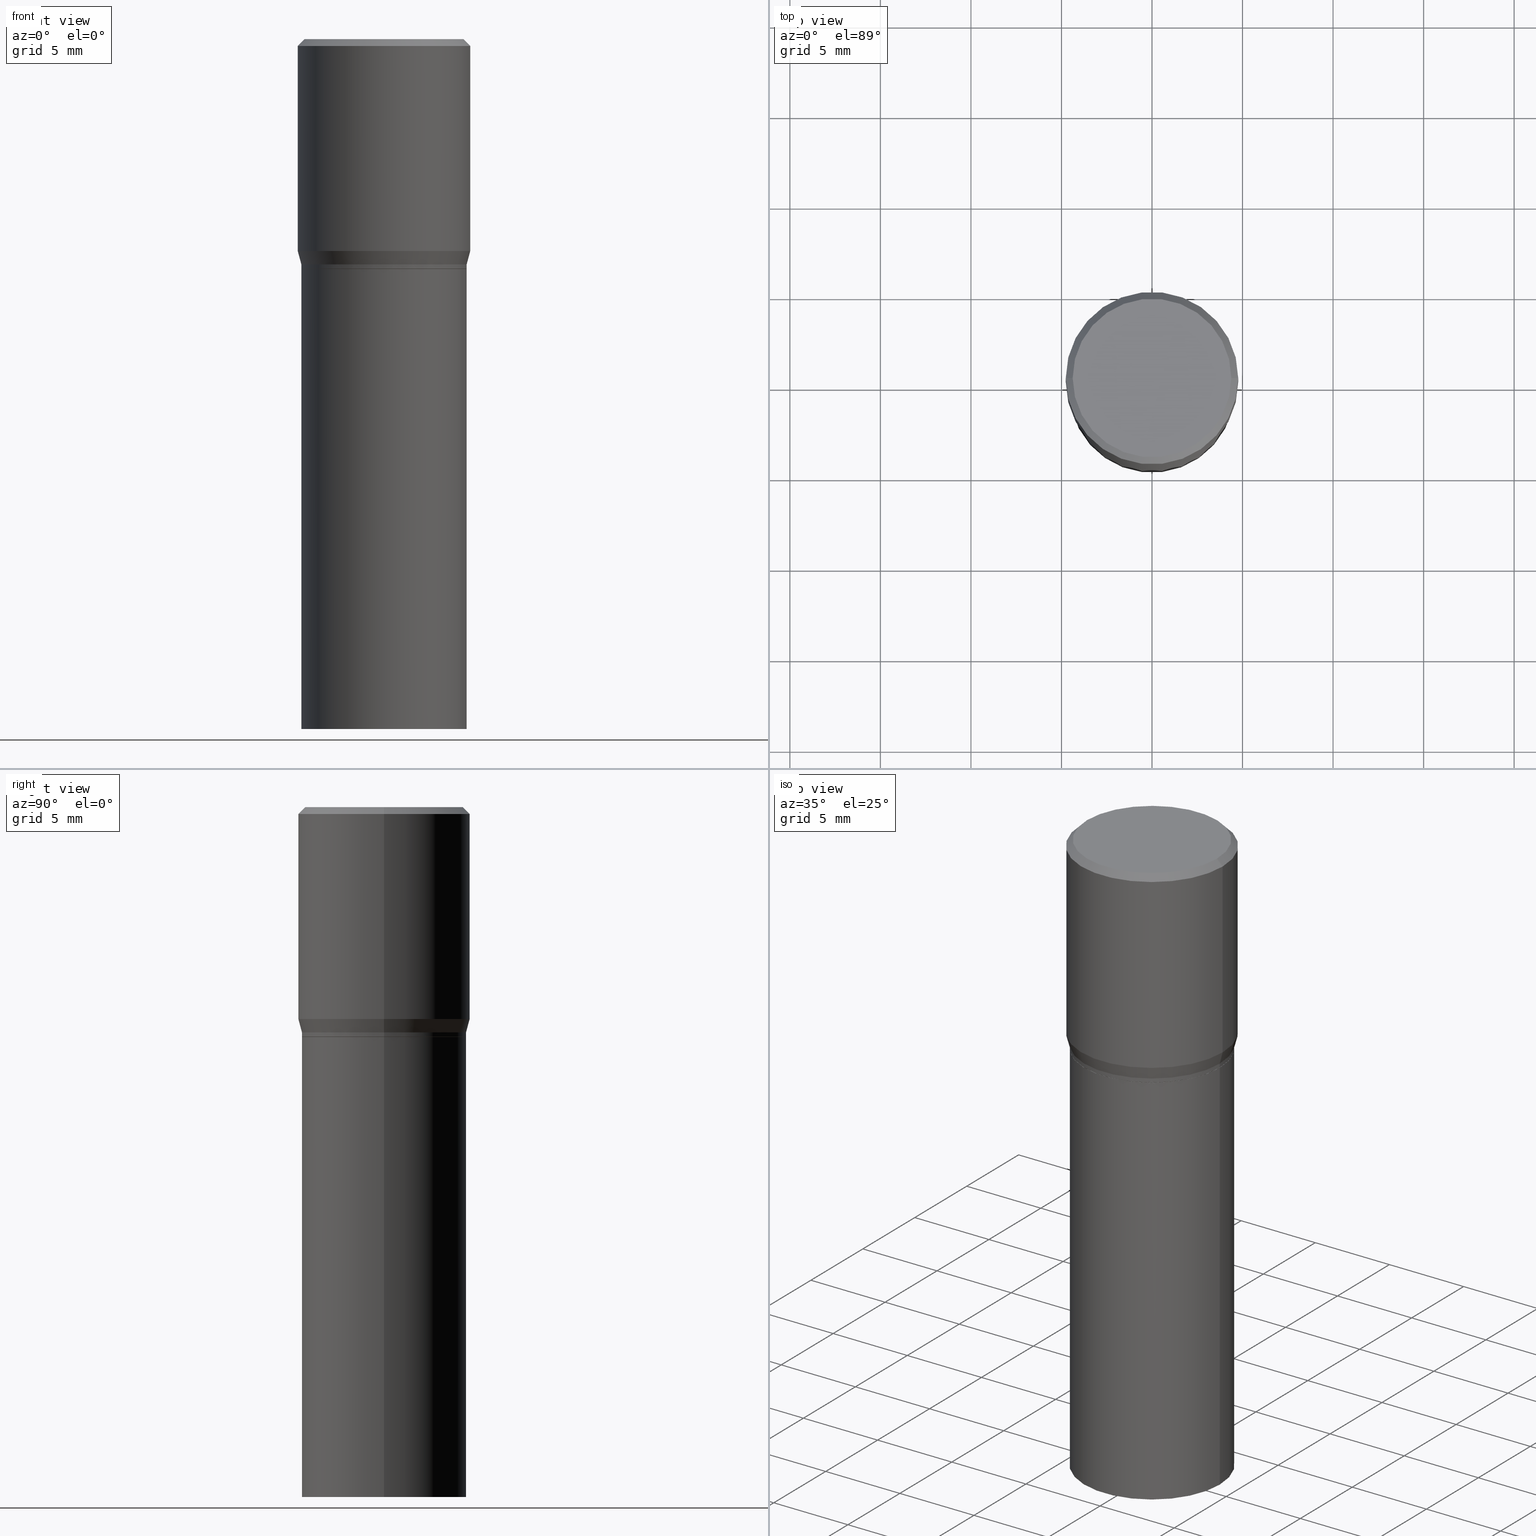
[diagram: canonical four-view strip — front | top / right | iso, engineering-drawing reading convention]
A machine part, canonical four-view strip (front | top / right | iso — engineering-drawing reading convention). The complete STEP part file that produces these views, byte-faithful:
ISO-10303-21;
HEADER;
FILE_DESCRIPTION (( 'STEP AP203' ),
    '1' );
FILE_NAME ('39745.STEP',
    '2024-03-12T19:07:04',
    ( '' ),
    ( '' ),
    'SwSTEP 2.0',
    'SolidWorks 2023',
    '' );
FILE_SCHEMA (( 'CONFIG_CONTROL_DESIGN' ));
ENDSEC;

DATA;
#1 = PRODUCT_DEFINITION_FORMATION_WITH_SPECIFIED_SOURCE ( 'ANY', '', #28, .NOT_KNOWN. ) ;
#2 = ORIENTED_EDGE ( 'NONE', *, *, #163, .T. ) ;
#3 = ORIENTED_EDGE ( 'NONE', *, *, #259, .F. ) ;
#4 = FACE_OUTER_BOUND ( 'NONE', #460, .T. ) ;
#5 = CIRCLE ( 'NONE', #106, 0.1791999999999999982 ) ;
#6 = AXIS2_PLACEMENT_3D ( 'NONE', #323, #236, #451 ) ;
#7 = ORIENTED_EDGE ( 'NONE', *, *, #66, .F. ) ;
#8 = CARTESIAN_POINT ( 'NONE',  ( 3.668203209277705088E-31, -5.237222008264718399E-17, -0.01499999999999999944 ) ) ;
#9 = ORIENTED_EDGE ( 'NONE', *, *, #115, .T. ) ;
#10 = PERSON_AND_ORGANIZATION ( #367, #243 ) ;
#11 = FACE_OUTER_BOUND ( 'NONE', #195, .T. ) ;
#12 = EDGE_CURVE ( 'NONE', #404, #342, #166, .T. ) ;
#13 = VERTEX_POINT ( 'NONE', #335 ) ;
#14 = DATE_AND_TIME ( #332, #226 ) ;
#15 = CARTESIAN_POINT ( 'NONE',  ( 1.222734403092568719E-29, -1.745740669421573186E-15, -0.5000000000000001110 ) ) ;
#16 = EDGE_CURVE ( 'NONE', #342, #87, #337, .T. ) ;
#17 = DIRECTION ( 'NONE',  ( 0.7071067811865715536, -2.468850131082509496E-15, 0.7071067811865232589 ) ) ;
#18 = AXIS2_PLACEMENT_3D ( 'NONE', #327, #437, #293 ) ;
#19 = PERSON_AND_ORGANIZATION_ROLE ( 'classification_officer' ) ;
#20 = CC_DESIGN_PERSON_AND_ORGANIZATION_ASSIGNMENT ( #199, #442, ( #1 ) ) ;
#21 = ORIENTED_EDGE ( 'NONE', *, *, #115, .F. ) ;
#22 = LINE ( 'NONE', #389, #312 ) ;
#23 = CARTESIAN_POINT ( 'NONE',  ( 0.1725000000000000144, -1.261075749640199308E-15, -2.636744989014362231E-17 ) ) ;
#24 = DIRECTION ( 'NONE',  ( 1.000000000000000000, -6.982962677686265922E-15, 0.000000000000000000 ) ) ;
#25 = CIRCLE ( 'NONE', #36, 0.1796999999999999986 ) ;
#26 = CIRCLE ( 'NONE', #125, 0.1875000000000000278 ) ;
#27 = DIRECTION ( 'NONE',  ( 0.7071067811865483499, -7.319954787623257623E-15, -0.7071067811865466846 ) ) ;
#28 = PRODUCT ( '39745', '39745', '', ( #186 ) ) ;
#29 = DIRECTION ( 'NONE',  ( -2.445468806185136597E-29, 3.491481338843145583E-15, 1.000000000000000000 ) ) ;
#30 = CARTESIAN_POINT ( 'NONE',  ( -0.1796999999999999986, -2.214636042682246150E-15, -0.5000000000000001110 ) ) ;
#31 = DIRECTION ( 'NONE',  ( 1.000000000000000000, -6.982962677686265922E-15, 4.876176775795935232E-29 ) ) ;
#32 = AXIS2_PLACEMENT_3D ( 'NONE', #256, #393, #184 ) ;
#33 = ORIENTED_EDGE ( 'NONE', *, *, #163, .F. ) ;
#34 = DIRECTION ( 'NONE',  ( 1.000000000000000000, -6.982962677686265922E-15, 0.000000000000000000 ) ) ;
#35 = DIRECTION ( 'NONE',  ( -2.445468806185136877E-29, 3.491481338843145188E-15, 1.000000000000000000 ) ) ;
#36 = AXIS2_PLACEMENT_3D ( 'NONE', #419, #288, #463 ) ;
#37 = CONICAL_SURFACE ( 'NONE', #284, 0.1875000000000000278, 0.7853981633974495002 ) ;
#38 = MANIFOLD_SOLID_BREP ( 'Body-Move/Copy2[2]', #193 ) ;
#39 = VERTEX_POINT ( 'NONE', #309 ) ;
#40 = EDGE_CURVE ( 'NONE', #267, #359, #458, .T. ) ;
#41 = ORIENTED_EDGE ( 'NONE', *, *, #315, .T. ) ;
#42 = APPROVAL_STATUS ( 'not_yet_approved' ) ;
#43 = DIRECTION ( 'NONE',  ( -2.438088387897960049E-29, 3.491481338843145188E-15, 1.000000000000000000 ) ) ;
#44 = EDGE_LOOP ( 'NONE', ( #79, #52 ) ) ;
#45 = APPROVAL_DATE_TIME ( #330, #333 ) ;
#46 = FACE_OUTER_BOUND ( 'NONE', #49, .T. ) ;
#47 = AXIS2_PLACEMENT_3D ( 'NONE', #311, #281, #248 ) ;
#48 = CONICAL_SURFACE ( 'NONE', #432, 0.1875000000000000278, 0.7853981633974495002 ) ;
#49 = EDGE_LOOP ( 'NONE', ( #104, #102, #183, #192 ) ) ;
#50 = DATE_TIME_ROLE ( 'creation_date' ) ;
#51 = EDGE_CURVE ( 'NONE', #346, #87, #279, .T. ) ;
#52 = ORIENTED_EDGE ( 'NONE', *, *, #395, .F. ) ;
#53 = COORDINATED_UNIVERSAL_TIME_OFFSET ( 5, 0, .BEHIND. ) ;
#54 = DIRECTION ( 'NONE',  ( -2.445468806185136597E-29, 3.491481338843145583E-15, 1.000000000000000000 ) ) ;
#55 = EDGE_CURVE ( 'NONE', #342, #190, #316, .T. ) ;
#56 = CARTESIAN_POINT ( 'NONE',  ( 1.221511668689476057E-29, -1.743994928752151682E-15, -0.4995000000000001661 ) ) ;
#57 = DATE_AND_TIME ( #123, #398 ) ;
#58 = CARTESIAN_POINT ( 'NONE',  ( 1.198279715030717173E-29, -1.710825856033141537E-15, -0.4900000000000001021 ) ) ;
#59 = AXIS2_PLACEMENT_3D ( 'NONE', #133, #164, #98 ) ;
#60 = DIRECTION ( 'NONE',  ( -2.445468806185136877E-29, 3.491481338843145188E-15, 1.000000000000000000 ) ) ;
#61 = CYLINDRICAL_SURFACE ( 'NONE', #232, 0.1875000000000000278 ) ;
#62 = CARTESIAN_POINT ( 'NONE',  ( 3.576687321579069994E-29, -5.368277968210015545E-15, -1.500000000000000222 ) ) ;
#63 = DIRECTION ( 'NONE',  ( -2.445468806185136597E-29, 3.491481338843145583E-15, 1.000000000000000000 ) ) ;
#64 = ORIENTED_EDGE ( 'NONE', *, *, #51, .T. ) ;
#65 = DIRECTION ( 'NONE',  ( 1.000000000000000000, -6.982962677686264344E-15, 0.000000000000000000 ) ) ;
#66 = EDGE_CURVE ( 'NONE', #82, #13, #320, .T. ) ;
#67 = AXIS2_PLACEMENT_3D ( 'NONE', #354, #68, #382 ) ;
#68 = DIRECTION ( 'NONE',  ( -2.445468806185136597E-29, 3.491481338843145583E-15, 1.000000000000000000 ) ) ;
#69 = FACE_OUTER_BOUND ( 'NONE', #331, .T. ) ;
#70 = DIRECTION ( 'NONE',  ( -2.445468806185136597E-29, 3.491481338843145583E-15, 1.000000000000000000 ) ) ;
#71 = DIRECTION ( 'NONE',  ( -2.445468806185136597E-29, 3.491481338843145583E-15, 1.000000000000000000 ) ) ;
#72 = CIRCLE ( 'NONE', #18, 0.1796999999999999986 ) ;
#73 = DIRECTION ( 'NONE',  ( 1.000000000000000000, 0.000000000000000000, 0.000000000000000000 ) ) ;
#74 = CIRCLE ( 'NONE', #369, 0.1791999999999999982 ) ;
#75 = AXIS2_PLACEMENT_3D ( 'NONE', #443, #93, #454 ) ;
#76 = CC_DESIGN_SECURITY_CLASSIFICATION ( #297, ( #1 ) ) ;
#77 = ORIENTED_EDGE ( 'NONE', *, *, #55, .T. ) ;
#78 = APPROVAL_STATUS ( 'not_yet_approved' ) ;
#79 = ORIENTED_EDGE ( 'NONE', *, *, #181, .F. ) ;
#80 = DIRECTION ( 'NONE',  ( 1.000000000000000000, -6.982962677686265922E-15, 4.876176775795935793E-29 ) ) ;
#81 = CC_DESIGN_PERSON_AND_ORGANIZATION_ASSIGNMENT ( #375, #19, ( #297 ) ) ;
#82 = VERTEX_POINT ( 'NONE', #171 ) ;
#83 = APPROVAL_ROLE ( '' ) ;
#84 = DIRECTION ( 'NONE',  ( -2.445468806185136877E-29, 3.491481338843145188E-15, 1.000000000000000000 ) ) ;
#85 = VECTOR ( 'NONE', #35, 39.37007874015748143 ) ;
#86 = CC_DESIGN_APPROVAL ( #134, ( #297 ) ) ;
#87 = VERTEX_POINT ( 'NONE', #244 ) ;
#88 = ADVANCED_FACE ( 'NONE', ( #247 ), #308, .T. ) ;
#89 = PERSON_AND_ORGANIZATION_ROLE ( 'creator' ) ;
#90 = CARTESIAN_POINT ( 'NONE',  ( -0.1796999999999999986, -4.339805598722415617E-16, -0.4900000000000001021 ) ) ;
#91 = DIRECTION ( 'NONE',  ( -2.445468806185136597E-29, 3.491481338843145583E-15, 1.000000000000000000 ) ) ;
#92 = APPROVAL_STATUS ( 'not_yet_approved' ) ;
#93 = DIRECTION ( 'NONE',  ( -2.445468806185136597E-29, 3.491481338843145583E-15, 1.000000000000000000 ) ) ;
#94 = DIRECTION ( 'NONE',  ( -2.445468806185136597E-29, 3.491481338843145583E-15, 1.000000000000000000 ) ) ;
#95 = ADVANCED_FACE ( 'NONE', ( #422 ), #137, .F. ) ;
#96 = DIRECTION ( 'NONE',  ( 1.000000000000000000, -6.982962677686266711E-15, 4.876912640186324808E-29 ) ) ;
#97 = EDGE_CURVE ( 'NONE', #346, #404, #5, .T. ) ;
#98 = DIRECTION ( 'NONE',  ( 1.000000000000000000, -6.982962677686265922E-15, 0.000000000000000000 ) ) ;
#99 = AXIS2_PLACEMENT_3D ( 'NONE', #179, #462, #167 ) ;
#100 = APPROVAL_PERSON_ORGANIZATION ( #10, #134, #83 ) ;
#101 = CARTESIAN_POINT ( 'NONE',  ( 0.000000000000000000, 0.000000000000000000, 0.000000000000000000 ) ) ;
#102 = ORIENTED_EDGE ( 'NONE', *, *, #239, .F. ) ;
#103 = CARTESIAN_POINT ( 'NONE',  ( 0.000000000000000000, 0.000000000000000000, 0.000000000000000000 ) ) ;
#104 = ORIENTED_EDGE ( 'NONE', *, *, #410, .F. ) ;
#105 = DIRECTION ( 'NONE',  ( 1.000000000000000000, -6.982962677686267499E-15, 0.000000000000000000 ) ) ;
#106 = AXIS2_PLACEMENT_3D ( 'NONE', #461, #273, #130 ) ;
#107 = VECTOR ( 'NONE', #266, 39.37007874015747433 ) ;
#108 = CARTESIAN_POINT ( 'NONE',  ( 0.000000000000000000, 0.000000000000000000, 0.000000000000000000 ) ) ;
#109 = CC_DESIGN_DATE_AND_TIME_ASSIGNMENT ( #402, #50, ( #160 ) ) ;
#110 = EDGE_LOOP ( 'NONE', ( #2, #388 ) ) ;
#111 = PRODUCT_DEFINITION_SHAPE ( 'NONE', 'NONE',  #160 ) ;
#112 = ADVANCED_FACE ( 'NONE', ( #282 ), #396, .T. ) ;
#113 = AXIS2_PLACEMENT_3D ( 'NONE', #103, #310, #392 ) ;
#114 = CARTESIAN_POINT ( 'NONE',  ( 0.1796999999999999986, -1.254838393180221928E-15, 8.762489666105295644E-30 ) ) ;
#115 = EDGE_CURVE ( 'NONE', #404, #346, #74, .T. ) ;
#116 = EDGE_LOOP ( 'NONE', ( #41, #438, #260, #435 ) ) ;
#117 = APPROVAL_PERSON_ORGANIZATION ( #440, #241, #119 ) ;
#118 = VERTEX_POINT ( 'NONE', #23 ) ;
#119 = APPROVAL_ROLE ( '' ) ;
#120 = EDGE_LOOP ( 'NONE', ( #158, #189, #368, #322 ) ) ;
#121 = CARTESIAN_POINT ( 'NONE',  ( -0.1796999999999999986, -2.214636042682246150E-15, -1.500000000000000222 ) ) ;
#122 = ORIENTED_EDGE ( 'NONE', *, *, #253, .F. ) ;
#123 = CALENDAR_DATE ( 2024, 12, 3 ) ;
#124 = DIRECTION ( 'NONE',  ( 2.445468806185136597E-29, -3.491481338843145583E-15, -1.000000000000000000 ) ) ;
#125 = AXIS2_PLACEMENT_3D ( 'NONE', #466, #143, #34 ) ;
#126 = ORIENTED_EDGE ( 'NONE', *, *, #295, .F. ) ;
#127 = PERSON_AND_ORGANIZATION ( #367, #243 ) ;
#128 = FACE_OUTER_BOUND ( 'NONE', #44, .T. ) ;
#129 = CARTESIAN_POINT ( 'NONE',  ( 3.668203209277705088E-31, -5.237222008264718399E-17, -0.01499999999999999944 ) ) ;
#130 = DIRECTION ( 'NONE',  ( 1.000000000000000000, -6.982962677686266711E-15, 0.000000000000000000 ) ) ;
#131 = DIRECTION ( 'NONE',  ( -2.445468806185136597E-29, 3.491481338843145583E-15, 1.000000000000000000 ) ) ;
#132 = VECTOR ( 'NONE', #415, 39.37007874015748854 ) ;
#133 = CARTESIAN_POINT ( 'NONE',  ( 3.668203209277705088E-31, -5.237222008264718399E-17, -0.01499999999999999944 ) ) ;
#134 = APPROVAL ( #42, 'UNSPECIFIED' ) ;
#135 = CARTESIAN_POINT ( 'NONE',  ( -0.1791999999999999982, -4.724480869394737642E-16, -0.5000000000000001110 ) ) ;
#136 = CARTESIAN_POINT ( 'NONE',  ( 0.000000000000000000, 0.000000000000000000, 0.000000000000000000 ) ) ;
#137 = PLANE ( 'NONE',  #47 ) ;
#138 = LINE ( 'NONE', #464, #162 ) ;
#139 = CC_DESIGN_PERSON_AND_ORGANIZATION_ASSIGNMENT ( #336, #89, ( #160 ) ) ;
#140 = CIRCLE ( 'NONE', #67, 0.1796999999999999986 ) ;
#141 = CYLINDRICAL_SURFACE ( 'NONE', #113, 0.1796999999999999986 ) ;
#142 = ADVANCED_FACE ( 'NONE', ( #128 ), #413, .F. ) ;
#143 = DIRECTION ( 'NONE',  ( -2.445468806185136597E-29, 3.491481338843145583E-15, 1.000000000000000000 ) ) ;
#144 = AXIS2_PLACEMENT_3D ( 'NONE', #423, #391, #254 ) ;
#145 = CIRCLE ( 'NONE', #425, 0.1725000000000000144 ) ;
#146 = DIRECTION ( 'NONE',  ( 2.438088387897960049E-29, -3.491481338843145188E-15, -1.000000000000000000 ) ) ;
#147 = LINE ( 'NONE', #191, #172 ) ;
#148 = ORIENTED_EDGE ( 'NONE', *, *, #315, .F. ) ;
#149 = ORIENTED_EDGE ( 'NONE', *, *, #253, .T. ) ;
#150 = CALENDAR_DATE ( 2024, 12, 3 ) ;
#151 = LINE ( 'NONE', #298, #361 ) ;
#152 = LOCAL_TIME ( 15, 7, 4.000000000000000000, #407 ) ;
#153 = ORIENTED_EDGE ( 'NONE', *, *, #12, .T. ) ;
#154 = APPROVAL_ROLE ( '' ) ;
#155 = ORIENTED_EDGE ( 'NONE', *, *, #439, .T. ) ;
#156 = COORDINATED_UNIVERSAL_TIME_OFFSET ( 5, 0, .BEHIND. ) ;
#157 = CARTESIAN_POINT ( 'NONE',  ( -0.1725000000000000144, 1.230747171942204192E-15, -2.636744989016075847E-17 ) ) ;
#158 = ORIENTED_EDGE ( 'NONE', *, *, #238, .F. ) ;
#159 = SHAPE_DEFINITION_REPRESENTATION ( #111, #390 ) ;
#160 = PRODUCT_DEFINITION ( 'UNKNOWN', '', #1, #165 ) ;
#161 = DIRECTION ( 'NONE',  ( 1.000000000000000000, -6.982962677686265922E-15, 0.000000000000000000 ) ) ;
#162 = VECTOR ( 'NONE', #27, 39.37007874015748143 ) ;
#163 = EDGE_CURVE ( 'NONE', #39, #409, #25, .T. ) ;
#164 = DIRECTION ( 'NONE',  ( -2.445468806185136597E-29, 3.491481338843145583E-15, 1.000000000000000000 ) ) ;
#165 = DESIGN_CONTEXT ( 'detailed design', #289, 'design' ) ;
#166 = LINE ( 'NONE', #135, #132 ) ;
#167 = DIRECTION ( 'NONE',  ( 1.000000000000000000, -6.982962677686265922E-15, 4.876176775795935232E-29 ) ) ;
#168 = CARTESIAN_POINT ( 'NONE',  ( 1.198279715030717173E-29, -1.710825856033141537E-15, -0.4900000000000001021 ) ) ;
#169 =( NAMED_UNIT ( * ) SI_UNIT ( $, .STERADIAN. ) SOLID_ANGLE_UNIT ( ) );
#170 = AXIS2_PLACEMENT_3D ( 'NONE', #168, #91, #237 ) ;
#171 = CARTESIAN_POINT ( 'NONE',  ( 0.1875000000000000278, -1.361677722148822285E-15, -0.01499999999999999944 ) ) ;
#172 = VECTOR ( 'NONE', #376, 39.37007874015748143 ) ;
#173 = ADVANCED_FACE ( 'NONE', ( #430 ), #180, .F. ) ;
#174 = CYLINDRICAL_SURFACE ( 'NONE', #262, 0.1796999999999999986 ) ;
#175 = EDGE_CURVE ( 'NONE', #409, #39, #349, .T. ) ;
#176 = ORIENTED_EDGE ( 'NONE', *, *, #55, .F. ) ;
#177 = FACE_OUTER_BOUND ( 'NONE', #275, .T. ) ;
#178 = ORIENTED_EDGE ( 'NONE', *, *, #97, .T. ) ;
#179 = CARTESIAN_POINT ( 'NONE',  ( 0.000000000000000000, 0.000000000000000000, 0.000000000000000000 ) ) ;
#180 = PLANE ( 'NONE',  #291 ) ;
#181 = EDGE_CURVE ( 'NONE', #302, #328, #305, .T. ) ;
#182 = AXIS2_PLACEMENT_3D ( 'NONE', #58, #339, #411 ) ;
#183 = ORIENTED_EDGE ( 'NONE', *, *, #379, .T. ) ;
#184 = DIRECTION ( 'NONE',  ( 1.000000000000000000, -6.982962677686266711E-15, 4.876912640186324808E-29 ) ) ;
#185 = PERSON_AND_ORGANIZATION ( #367, #243 ) ;
#186 = MECHANICAL_CONTEXT ( 'NONE', #453, 'mechanical' ) ;
#187 = CLOSED_SHELL ( 'NONE', ( #421, #142, #88, #95 ) ) ;
#188 = CARTESIAN_POINT ( 'NONE',  ( 0.1875000000000000278, -2.918494349247435201E-15, -0.4608900037009628914 ) ) ;
#189 = ORIENTED_EDGE ( 'NONE', *, *, #259, .T. ) ;
#190 = VERTEX_POINT ( 'NONE', #250 ) ;
#191 = CARTESIAN_POINT ( 'NONE',  ( 0.1796999999999999986, -1.254838393180221928E-15, 8.762489666105295644E-30 ) ) ;
#192 = ORIENTED_EDGE ( 'NONE', *, *, #329, .T. ) ;
#193 = CLOSED_SHELL ( 'NONE', ( #446, #429, #216, #394, #112, #290, #340, #360, #173, #341, #276, #387 ) ) ;
#194 = AXIS2_PLACEMENT_3D ( 'NONE', #287, #71, #105 ) ;
#195 = EDGE_LOOP ( 'NONE', ( #325, #149, #363, #3 ) ) ;
#196 = DATE_AND_TIME ( #326, #383 ) ;
#197 = DIRECTION ( 'NONE',  ( -2.445468806185136877E-29, 3.491481338843145188E-15, 1.000000000000000000 ) ) ;
#198 = EDGE_LOOP ( 'NONE', ( #270, #264, #33, #401 ) ) ;
#199 = PERSON_AND_ORGANIZATION ( #367, #243 ) ;
#200 = FACE_OUTER_BOUND ( 'NONE', #120, .T. ) ;
#201 = CARTESIAN_POINT ( 'NONE',  ( 0.000000000000000000, 0.000000000000000000, 0.000000000000000000 ) ) ;
#202 = MANIFOLD_SOLID_BREP ( 'Body-Move/Copy2[1]', #187 ) ;
#203 = CARTESIAN_POINT ( 'NONE',  ( 0.1796999999999999986, -2.965664249213363464E-15, -0.4900000000000001021 ) ) ;
#204 = CONICAL_SURFACE ( 'NONE', #465, 0.1791999999999999982, 0.7853981633974824739 ) ;
#205 = DIRECTION ( 'NONE',  ( -2.438088387897960049E-29, 3.491481338843145188E-15, 1.000000000000000000 ) ) ;
#206 = CC_DESIGN_DATE_AND_TIME_ASSIGNMENT ( #196, #400, ( #297 ) ) ;
#207 = DIRECTION ( 'NONE',  ( 1.000000000000000000, -6.982962677686265922E-15, 4.876176775795935793E-29 ) ) ;
#208 = LENGTH_MEASURE_WITH_UNIT ( LENGTH_MEASURE( 0.02539999999999999897 ), #424 );
#209 = ORIENTED_EDGE ( 'NONE', *, *, #16, .F. ) ;
#210 = FACE_OUTER_BOUND ( 'NONE', #198, .T. ) ;
#211 = CARTESIAN_POINT ( 'NONE',  ( 1.127092127133256822E-29, -1.609188847181260193E-15, -0.4608900037009628914 ) ) ;
#212 = CONICAL_SURFACE ( 'NONE', #269, 0.1791999999999999982, 0.7853981633974824739 ) ;
#213 = DIRECTION ( 'NONE',  ( -2.445468806185136597E-29, 3.491481338843145583E-15, 1.000000000000000000 ) ) ;
#214 = CARTESIAN_POINT ( 'NONE',  ( 3.668203209277705088E-31, -5.237222008264718399E-17, -0.01499999999999999944 ) ) ;
#215 = DIRECTION ( 'NONE',  ( 1.000000000000000000, -6.982962677686265922E-15, 4.876176775795935793E-29 ) ) ;
#216 = ADVANCED_FACE ( 'NONE', ( #69 ), #37, .T. ) ;
#217 = DIRECTION ( 'NONE',  ( -1.000000000000000000, 6.982962677686265922E-15, 0.000000000000000000 ) ) ;
#218 = AXIS2_PLACEMENT_3D ( 'NONE', #129, #274, #161 ) ;
#219 = EDGE_LOOP ( 'NONE', ( #265, #155 ) ) ;
#220 = APPLICATION_PROTOCOL_DEFINITION ( 'international standard', 'config_control_design', 1994, #289 ) ;
#221 = ORIENTED_EDGE ( 'NONE', *, *, #175, .F. ) ;
#222 = DIRECTION ( 'NONE',  ( 0.000000000000000000, 0.000000000000000000, 1.000000000000000000 ) ) ;
#223 = CARTESIAN_POINT ( 'NONE',  ( 1.204561061900881047E-15, 0.1725000000000000144, -6.154642558955188135E-16 ) ) ;
#224 = ORIENTED_EDGE ( 'NONE', *, *, #51, .F. ) ;
#225 = AXIS2_PLACEMENT_3D ( 'NONE', #108, #222, #73 ) ;
#226 = LOCAL_TIME ( 15, 7, 4.000000000000000000, #156 ) ;
#227 = ORIENTED_EDGE ( 'NONE', *, *, #40, .T. ) ;
#228 = COORDINATED_UNIVERSAL_TIME_OFFSET ( 5, 0, .BEHIND. ) ;
#229 = ORIENTED_EDGE ( 'NONE', *, *, #12, .F. ) ;
#230 = ORIENTED_EDGE ( 'NONE', *, *, #263, .F. ) ;
#231 = DIRECTION ( 'NONE',  ( 1.000000000000000000, -6.982962677686266711E-15, 0.000000000000000000 ) ) ;
#232 = AXIS2_PLACEMENT_3D ( 'NONE', #101, #70, #215 ) ;
#233 = CC_DESIGN_PERSON_AND_ORGANIZATION_ASSIGNMENT ( #428, #255, ( #28 ) ) ;
#234 = ORIENTED_EDGE ( 'NONE', *, *, #434, .T. ) ;
#235 = PERSON_AND_ORGANIZATION_ROLE ( 'creator' ) ;
#236 = DIRECTION ( 'NONE',  ( -2.445468806185136597E-29, 3.491481338843145583E-15, 1.000000000000000000 ) ) ;
#237 = DIRECTION ( 'NONE',  ( 1.000000000000000000, -6.982962677686265922E-15, 0.000000000000000000 ) ) ;
#238 = EDGE_CURVE ( 'NONE', #359, #13, #358, .T. ) ;
#239 = EDGE_CURVE ( 'NONE', #351, #118, #372, .T. ) ;
#240 = CARTESIAN_POINT ( 'NONE',  ( 0.1791999999999999982, -2.997087581262952106E-15, -0.5000000000000001110 ) ) ;
#241 = APPROVAL ( #92, 'UNSPECIFIED' ) ;
#242 = FACE_OUTER_BOUND ( 'NONE', #362, .T. ) ;
#243 = ORGANIZATION ( 'UNSPECIFIED', 'UNSPECIFIED', '' ) ;
#244 = CARTESIAN_POINT ( 'NONE',  ( 0.1796999999999999986, -2.998833321932373610E-15, -0.4995000000000001661 ) ) ;
#245 = CARTESIAN_POINT ( 'NONE',  ( 1.222734403092568719E-29, -1.745740669421573186E-15, -0.5000000000000001110 ) ) ;
#246 = PRODUCT_RELATED_PRODUCT_CATEGORY ( 'detail', '', ( #28 ) ) ;
#247 = FACE_OUTER_BOUND ( 'NONE', #406, .T. ) ;
#248 = DIRECTION ( 'NONE',  ( -1.000000000000000000, 6.982962677686265922E-15, -4.876176775795935793E-29 ) ) ;
#249 = VECTOR ( 'NONE', #60, 39.37007874015748143 ) ;
#250 = CARTESIAN_POINT ( 'NONE',  ( -0.1796999999999999986, -3.554508887516567806E-16, -0.4900000000000001021 ) ) ;
#251 = AXIS2_PLACEMENT_3D ( 'NONE', #15, #43, #80 ) ;
#252 = DIRECTION ( 'NONE',  ( -2.445468806185136597E-29, 3.491481338843145583E-15, 1.000000000000000000 ) ) ;
#253 = EDGE_CURVE ( 'NONE', #190, #304, #72, .T. ) ;
#254 = DIRECTION ( 'NONE',  ( 1.000000000000000000, -6.982962677686265922E-15, 0.000000000000000000 ) ) ;
#255 = PERSON_AND_ORGANIZATION_ROLE ( 'design_owner' ) ;
#256 = CARTESIAN_POINT ( 'NONE',  ( 6.448077620501702025E-46, -9.206145924434830208E-32, -2.636744989015224123E-17 ) ) ;
#257 = AXIS2_PLACEMENT_3D ( 'NONE', #201, #386, #313 ) ;
#258 = CIRCLE ( 'NONE', #218, 0.1875000000000000278 ) ;
#259 = EDGE_CURVE ( 'NONE', #359, #267, #26, .T. ) ;
#260 = ORIENTED_EDGE ( 'NONE', *, *, #40, .F. ) ;
#261 = AXIS2_PLACEMENT_3D ( 'NONE', #56, #94, #65 ) ;
#262 = AXIS2_PLACEMENT_3D ( 'NONE', #136, #63, #31 ) ;
#263 = EDGE_CURVE ( 'NONE', #87, #304, #433, .T. ) ;
#264 = ORIENTED_EDGE ( 'NONE', *, *, #348, .T. ) ;
#265 = ORIENTED_EDGE ( 'NONE', *, *, #239, .T. ) ;
#266 = DIRECTION ( 'NONE',  ( 0.2588190451025213501, 1.565188264969621968E-15, 0.9659258262890682012 ) ) ;
#267 = VERTEX_POINT ( 'NONE', #188 ) ;
#268 = DIRECTION ( 'NONE',  ( -1.000000000000000000, 6.982962677686265922E-15, 0.000000000000000000 ) ) ;
#269 = AXIS2_PLACEMENT_3D ( 'NONE', #405, #54, #231 ) ;
#270 = ORIENTED_EDGE ( 'NONE', *, *, #181, .T. ) ;
#271 = EDGE_CURVE ( 'NONE', #302, #39, #147, .T. ) ;
#272 = CARTESIAN_POINT ( 'NONE',  ( 0.1875000000000000278, -1.309305502066175008E-15, 9.142831454617381013E-30 ) ) ;
#273 = DIRECTION ( 'NONE',  ( -2.445468806185136597E-29, 3.491481338843145583E-15, 1.000000000000000000 ) ) ;
#274 = DIRECTION ( 'NONE',  ( -2.445468806185136597E-29, 3.491481338843145583E-15, 1.000000000000000000 ) ) ;
#275 = EDGE_LOOP ( 'NONE', ( #176, #399, #444, #122 ) ) ;
#276 = ADVANCED_FACE ( 'NONE', ( #4 ), #212, .T. ) ;
#277 = LOCAL_TIME ( 15, 7, 4.000000000000000000, #228 ) ;
#278 = CC_DESIGN_APPROVAL ( #241, ( #1 ) ) ;
#279 = LINE ( 'NONE', #240, #448 ) ;
#280 = DIRECTION ( 'NONE',  ( -0.2588190451025213501, 5.211531920934551042E-15, 0.9659258262890682012 ) ) ;
#281 = DIRECTION ( 'NONE',  ( 2.438088387897960049E-29, -3.491481338843145188E-15, -1.000000000000000000 ) ) ;
#282 = FACE_OUTER_BOUND ( 'NONE', #116, .T. ) ;
#283 = CARTESIAN_POINT ( 'NONE',  ( 6.448077620501702025E-46, -9.206145924434830208E-32, -2.636744989015224123E-17 ) ) ;
#284 = AXIS2_PLACEMENT_3D ( 'NONE', #214, #355, #217 ) ;
#285 = DIRECTION ( 'NONE',  ( -1.000000000000000000, 6.982962677686265922E-15, -4.876176775795935793E-29 ) ) ;
#286 = DIRECTION ( 'NONE',  ( 1.000000000000000000, -6.982962677686266711E-15, 0.000000000000000000 ) ) ;
#287 = CARTESIAN_POINT ( 'NONE',  ( 3.668203209277704895E-29, -5.237222008264718177E-15, -1.500000000000000222 ) ) ;
#288 = DIRECTION ( 'NONE',  ( -2.445468806185136597E-29, 3.491481338843145583E-15, 1.000000000000000000 ) ) ;
#289 = APPLICATION_CONTEXT ( 'configuration controlled 3d designs of mechanical parts and assemblies' ) ;
#290 = ADVANCED_FACE ( 'NONE', ( #11 ), #338, .T. ) ;
#291 = AXIS2_PLACEMENT_3D ( 'NONE', #223, #146, #285 ) ;
#292 = CIRCLE ( 'NONE', #350, 0.1796999999999999986 ) ;
#293 = DIRECTION ( 'NONE',  ( 1.000000000000000000, -6.982962677686265922E-15, 0.000000000000000000 ) ) ;
#294 = ORIENTED_EDGE ( 'NONE', *, *, #348, .F. ) ;
#295 = EDGE_CURVE ( 'NONE', #267, #82, #301, .T. ) ;
#296 = ORIENTED_EDGE ( 'NONE', *, *, #66, .T. ) ;
#297 = SECURITY_CLASSIFICATION ( '', '', #436 ) ;
#298 = CARTESIAN_POINT ( 'NONE',  ( -0.1796999999999999986, 1.276845296160900024E-15, -8.839326357188065585E-30 ) ) ;
#299 = ORIENTED_EDGE ( 'NONE', *, *, #97, .F. ) ;
#300 = CALENDAR_DATE ( 2024, 12, 3 ) ;
#301 = LINE ( 'NONE', #272, #459 ) ;
#302 = VERTEX_POINT ( 'NONE', #334 ) ;
#303 = LINE ( 'NONE', #445, #107 ) ;
#304 = VERTEX_POINT ( 'NONE', #203 ) ;
#305 = CIRCLE ( 'NONE', #194, 0.1796999999999999986 ) ;
#306 = CARTESIAN_POINT ( 'NONE',  ( -0.1796999999999999986, -4.671496325912518552E-16, -0.4995000000000001661 ) ) ;
#307 = CIRCLE ( 'NONE', #182, 0.1796999999999999986 ) ;
#308 = CYLINDRICAL_SURFACE ( 'NONE', #257, 0.1796999999999999986 ) ;
#309 = CARTESIAN_POINT ( 'NONE',  ( 0.1796999999999999986, -3.000579062601795113E-15, -0.5000000000000001110 ) ) ;
#310 = DIRECTION ( 'NONE',  ( -2.445468806185136597E-29, 3.491481338843145583E-15, 1.000000000000000000 ) ) ;
#311 = CARTESIAN_POINT ( 'NONE',  ( 1.254838393180234155E-15, 0.1796999999999982500, -0.5000000000000007772 ) ) ;
#312 = VECTOR ( 'NONE', #420, 39.37007874015748143 ) ;
#313 = DIRECTION ( 'NONE',  ( 1.000000000000000000, -6.982962677686265922E-15, 4.876176775795935232E-29 ) ) ;
#314 = CYLINDRICAL_SURFACE ( 'NONE', #99, 0.1796999999999999986 ) ;
#315 = EDGE_CURVE ( 'NONE', #304, #190, #307, .T. ) ;
#316 = LINE ( 'NONE', #457, #249 ) ;
#317 = CARTESIAN_POINT ( 'NONE',  ( -0.1791999999999999982, -4.697988597653629576E-16, -0.5000000000000001110 ) ) ;
#318 = CARTESIAN_POINT ( 'NONE',  ( -0.1875000000000000278, 1.332267629550188046E-15, -9.223003294227947991E-30 ) ) ;
#319 = ORIENTED_EDGE ( 'NONE', *, *, #395, .T. ) ;
#320 = CIRCLE ( 'NONE', #59, 0.1875000000000000278 ) ;
#321 = EDGE_LOOP ( 'NONE', ( #299, #21 ) ) ;
#322 = ORIENTED_EDGE ( 'NONE', *, *, #329, .F. ) ;
#323 = CARTESIAN_POINT ( 'NONE',  ( 0.000000000000000000, 0.000000000000000000, 0.000000000000000000 ) ) ;
#324 = CC_DESIGN_PERSON_AND_ORGANIZATION_ASSIGNMENT ( #127, #235, ( #1 ) ) ;
#325 = ORIENTED_EDGE ( 'NONE', *, *, #370, .F. ) ;
#326 = CALENDAR_DATE ( 2024, 12, 3 ) ;
#327 = CARTESIAN_POINT ( 'NONE',  ( 1.198279715030717173E-29, -1.710825856033141537E-15, -0.4900000000000001021 ) ) ;
#328 = VERTEX_POINT ( 'NONE', #121 ) ;
#329 = EDGE_CURVE ( 'NONE', #13, #82, #258, .T. ) ;
#330 = DATE_AND_TIME ( #150, #152 ) ;
#331 = EDGE_LOOP ( 'NONE', ( #374, #447, #296, #365 ) ) ;
#332 = CALENDAR_DATE ( 2024, 12, 3 ) ;
#333 = APPROVAL ( #78, 'UNSPECIFIED' ) ;
#334 = CARTESIAN_POINT ( 'NONE',  ( 0.1796999999999999986, -6.492060401444940696E-15, -1.500000000000000222 ) ) ;
#335 = CARTESIAN_POINT ( 'NONE',  ( -0.1875000000000000278, 5.014870959182341138E-16, -0.01499999999999999944 ) ) ;
#336 = PERSON_AND_ORGANIZATION ( #367, #243 ) ;
#337 = CIRCLE ( 'NONE', #261, 0.1796999999999999986 ) ;
#338 = CONICAL_SURFACE ( 'NONE', #75, 0.1796999999999999986, 0.2617993877991500740 ) ;
#339 = DIRECTION ( 'NONE',  ( -2.445468806185136597E-29, 3.491481338843145583E-15, 1.000000000000000000 ) ) ;
#340 = ADVANCED_FACE ( 'NONE', ( #200 ), #403, .T. ) ;
#341 = ADVANCED_FACE ( 'NONE', ( #378 ), #414, .F. ) ;
#342 = VERTEX_POINT ( 'NONE', #306 ) ;
#343 = FACE_OUTER_BOUND ( 'NONE', #427, .T. ) ;
#344 = EDGE_LOOP ( 'NONE', ( #178, #153, #455, #224 ) ) ;
#345 =( NAMED_UNIT ( * ) PLANE_ANGLE_UNIT ( ) SI_UNIT ( $, .RADIAN. ) );
#346 = VERTEX_POINT ( 'NONE', #373 ) ;
#347 =( CONVERSION_BASED_UNIT ( 'INCH', #208 ) LENGTH_UNIT ( ) NAMED_UNIT ( #450 ) );
#348 = EDGE_CURVE ( 'NONE', #328, #409, #151, .T. ) ;
#349 = CIRCLE ( 'NONE', #144, 0.1796999999999999986 ) ;
#350 = AXIS2_PLACEMENT_3D ( 'NONE', #385, #252, #418 ) ;
#351 = VERTEX_POINT ( 'NONE', #157 ) ;
#352 = APPLICATION_PROTOCOL_DEFINITION ( 'international standard', 'config_control_design', 1994, #453 ) ;
#353 = DIRECTION ( 'NONE',  ( -2.445468806185136877E-29, 3.491481338843145188E-15, 1.000000000000000000 ) ) ;
#354 = CARTESIAN_POINT ( 'NONE',  ( 3.668203209277704895E-29, -5.237222008264718177E-15, -1.500000000000000222 ) ) ;
#355 = DIRECTION ( 'NONE',  ( 2.445468806185136597E-29, -3.491481338843145583E-15, -1.000000000000000000 ) ) ;
#356 = EDGE_CURVE ( 'NONE', #304, #267, #303, .T. ) ;
#357 = APPROVAL_PERSON_ORGANIZATION ( #185, #333, #154 ) ;
#358 = LINE ( 'NONE', #318, #397 ) ;
#359 = VERTEX_POINT ( 'NONE', #366 ) ;
#360 = ADVANCED_FACE ( 'NONE', ( #46 ), #48, .T. ) ;
#361 = VECTOR ( 'NONE', #197, 39.37007874015748143 ) ;
#362 = EDGE_LOOP ( 'NONE', ( #234, #77, #148, #230 ) ) ;
#363 = ORIENTED_EDGE ( 'NONE', *, *, #356, .T. ) ;
#364 = APPROVAL_DATE_TIME ( #14, #134 ) ;
#365 = ORIENTED_EDGE ( 'NONE', *, *, #379, .F. ) ;
#366 = CARTESIAN_POINT ( 'NONE',  ( -0.1875000000000000278, -2.769212176310719994E-16, -0.4608900037009628914 ) ) ;
#367 = PERSON ( 'UNSPECIFIED', 'UNSPECIFIED', 'UNSPECIFIED', ('UNSPECIFIED'), ('UNSPECIFIED'), ('UNSPECIFIED') ) ;
#368 = ORIENTED_EDGE ( 'NONE', *, *, #295, .T. ) ;
#369 = AXIS2_PLACEMENT_3D ( 'NONE', #384, #377, #452 ) ;
#370 = EDGE_CURVE ( 'NONE', #190, #359, #408, .T. ) ;
#371 = APPROVAL_DATE_TIME ( #57, #241 ) ;
#372 = CIRCLE ( 'NONE', #32, 0.1725000000000000144 ) ;
#373 = CARTESIAN_POINT ( 'NONE',  ( 0.1791999999999999982, -2.997087581262952106E-15, -0.5000000000000001110 ) ) ;
#374 = ORIENTED_EDGE ( 'NONE', *, *, #439, .F. ) ;
#375 = PERSON_AND_ORGANIZATION ( #367, #243 ) ;
#376 = DIRECTION ( 'NONE',  ( -2.445468806185136877E-29, 3.491481338843145188E-15, 1.000000000000000000 ) ) ;
#377 = DIRECTION ( 'NONE',  ( -2.445468806185136597E-29, 3.491481338843145583E-15, 1.000000000000000000 ) ) ;
#378 = FACE_OUTER_BOUND ( 'NONE', #321, .T. ) ;
#379 = EDGE_CURVE ( 'NONE', #351, #13, #22, .T. ) ;
#380 = ORIENTED_EDGE ( 'NONE', *, *, #271, .T. ) ;
#381 =( GEOMETRIC_REPRESENTATION_CONTEXT ( 3 ) GLOBAL_UNCERTAINTY_ASSIGNED_CONTEXT ( ( #412 ) ) GLOBAL_UNIT_ASSIGNED_CONTEXT ( ( #347, #345, #169 ) ) REPRESENTATION_CONTEXT ( 'NONE', 'WORKASPACE' ) );
#382 = DIRECTION ( 'NONE',  ( 1.000000000000000000, -6.982962677686267499E-15, 0.000000000000000000 ) ) ;
#383 = LOCAL_TIME ( 15, 7, 4.000000000000000000, #53 ) ;
#384 = CARTESIAN_POINT ( 'NONE',  ( 1.222734403092568719E-29, -1.745740669421573186E-15, -0.5000000000000001110 ) ) ;
#385 = CARTESIAN_POINT ( 'NONE',  ( 1.221511668689476057E-29, -1.743994928752151682E-15, -0.4995000000000001661 ) ) ;
#386 = DIRECTION ( 'NONE',  ( -2.445468806185136597E-29, 3.491481338843145583E-15, 1.000000000000000000 ) ) ;
#387 = ADVANCED_FACE ( 'NONE', ( #177 ), #314, .T. ) ;
#388 = ORIENTED_EDGE ( 'NONE', *, *, #175, .T. ) ;
#389 = CARTESIAN_POINT ( 'NONE',  ( -0.1875000000000000278, 1.256933281983527732E-15, -0.01499999999999999944 ) ) ;
#390 = ADVANCED_BREP_SHAPE_REPRESENTATION ( '39745', ( #202, #38, #225 ), #381 ) ;
#391 = DIRECTION ( 'NONE',  ( -2.445468806185136597E-29, 3.491481338843145583E-15, 1.000000000000000000 ) ) ;
#392 = DIRECTION ( 'NONE',  ( 1.000000000000000000, -6.982962677686265922E-15, 4.876176775795935232E-29 ) ) ;
#393 = DIRECTION ( 'NONE',  ( -2.445468806185136597E-29, 3.491481338843145583E-15, 1.000000000000000000 ) ) ;
#394 = ADVANCED_FACE ( 'NONE', ( #343 ), #61, .T. ) ;
#395 = EDGE_CURVE ( 'NONE', #328, #302, #140, .T. ) ;
#396 = CONICAL_SURFACE ( 'NONE', #170, 0.1796999999999999986, 0.2617993877991500740 ) ;
#397 = VECTOR ( 'NONE', #353, 39.37007874015748143 ) ;
#398 = LOCAL_TIME ( 15, 7, 4.000000000000000000, #449 ) ;
#399 = ORIENTED_EDGE ( 'NONE', *, *, #16, .T. ) ;
#400 = DATE_TIME_ROLE ( 'classification_date' ) ;
#401 = ORIENTED_EDGE ( 'NONE', *, *, #271, .F. ) ;
#402 = DATE_AND_TIME ( #300, #277 ) ;
#403 = CYLINDRICAL_SURFACE ( 'NONE', #6, 0.1875000000000000278 ) ;
#404 = VERTEX_POINT ( 'NONE', #317 ) ;
#405 = CARTESIAN_POINT ( 'NONE',  ( 1.222734403092568719E-29, -1.745740669421573186E-15, -0.5000000000000001110 ) ) ;
#406 = EDGE_LOOP ( 'NONE', ( #294, #319, #380, #221 ) ) ;
#407 = COORDINATED_UNIVERSAL_TIME_OFFSET ( 5, 0, .BEHIND. ) ;
#408 = LINE ( 'NONE', #90, #426 ) ;
#409 = VERTEX_POINT ( 'NONE', #30 ) ;
#410 = EDGE_CURVE ( 'NONE', #118, #82, #138, .T. ) ;
#411 = DIRECTION ( 'NONE',  ( 1.000000000000000000, -6.982962677686265922E-15, 0.000000000000000000 ) ) ;
#412 = UNCERTAINTY_MEASURE_WITH_UNIT (LENGTH_MEASURE( 1.000000000000000082E-05 ), #347, 'distance_accuracy_value', 'NONE');
#413 = PLANE ( 'NONE',  #431 ) ;
#414 = PLANE ( 'NONE',  #251 ) ;
#415 = DIRECTION ( 'NONE',  ( -0.7071067811865715536, 7.493145998870439357E-15, 0.7071067811865232589 ) ) ;
#416 = AXIS2_PLACEMENT_3D ( 'NONE', #211, #29, #24 ) ;
#417 = CC_DESIGN_APPROVAL ( #333, ( #160 ) ) ;
#418 = DIRECTION ( 'NONE',  ( 1.000000000000000000, -6.982962677686264344E-15, 0.000000000000000000 ) ) ;
#419 = CARTESIAN_POINT ( 'NONE',  ( 1.222734403092568719E-29, -1.745740669421573186E-15, -0.5000000000000001110 ) ) ;
#420 = DIRECTION ( 'NONE',  ( -0.7071067811865483499, 2.468850131082265738E-15, -0.7071067811865466846 ) ) ;
#421 = ADVANCED_FACE ( 'NONE', ( #210 ), #141, .T. ) ;
#422 = FACE_OUTER_BOUND ( 'NONE', #110, .T. ) ;
#423 = CARTESIAN_POINT ( 'NONE',  ( 1.222734403092568719E-29, -1.745740669421573186E-15, -0.5000000000000001110 ) ) ;
#424 =( LENGTH_UNIT ( ) NAMED_UNIT ( * ) SI_UNIT ( $, .METRE. ) );
#425 = AXIS2_PLACEMENT_3D ( 'NONE', #283, #131, #96 ) ;
#426 = VECTOR ( 'NONE', #280, 39.37007874015747433 ) ;
#427 = EDGE_LOOP ( 'NONE', ( #227, #441, #7, #126 ) ) ;
#428 = PERSON_AND_ORGANIZATION ( #367, #243 ) ;
#429 = ADVANCED_FACE ( 'NONE', ( #456 ), #204, .T. ) ;
#430 = FACE_OUTER_BOUND ( 'NONE', #219, .T. ) ;
#431 = AXIS2_PLACEMENT_3D ( 'NONE', #62, #205, #207 ) ;
#432 = AXIS2_PLACEMENT_3D ( 'NONE', #8, #124, #268 ) ;
#433 = LINE ( 'NONE', #114, #85 ) ;
#434 = EDGE_CURVE ( 'NONE', #87, #342, #292, .T. ) ;
#435 = ORIENTED_EDGE ( 'NONE', *, *, #356, .F. ) ;
#436 = SECURITY_CLASSIFICATION_LEVEL ( 'unclassified' ) ;
#437 = DIRECTION ( 'NONE',  ( -2.445468806185136597E-29, 3.491481338843145583E-15, 1.000000000000000000 ) ) ;
#438 = ORIENTED_EDGE ( 'NONE', *, *, #370, .T. ) ;
#439 = EDGE_CURVE ( 'NONE', #118, #351, #145, .T. ) ;
#440 = PERSON_AND_ORGANIZATION ( #367, #243 ) ;
#441 = ORIENTED_EDGE ( 'NONE', *, *, #238, .T. ) ;
#442 = PERSON_AND_ORGANIZATION_ROLE ( 'design_supplier' ) ;
#443 = CARTESIAN_POINT ( 'NONE',  ( 1.198279715030717173E-29, -1.710825856033141537E-15, -0.4900000000000001021 ) ) ;
#444 = ORIENTED_EDGE ( 'NONE', *, *, #263, .T. ) ;
#445 = CARTESIAN_POINT ( 'NONE',  ( 0.1796999999999999986, -2.965664249213363464E-15, -0.4900000000000001021 ) ) ;
#446 = ADVANCED_FACE ( 'NONE', ( #242 ), #174, .T. ) ;
#447 = ORIENTED_EDGE ( 'NONE', *, *, #410, .T. ) ;
#448 = VECTOR ( 'NONE', #17, 39.37007874015748854 ) ;
#449 = COORDINATED_UNIVERSAL_TIME_OFFSET ( 5, 0, .BEHIND. ) ;
#450 = DIMENSIONAL_EXPONENTS ( 1.000000000000000000, 0.000000000000000000, 0.000000000000000000, 0.000000000000000000, 0.000000000000000000, 0.000000000000000000, 0.000000000000000000 ) ;
#451 = DIRECTION ( 'NONE',  ( 1.000000000000000000, -6.982962677686265922E-15, 4.876176775795935793E-29 ) ) ;
#452 = DIRECTION ( 'NONE',  ( 1.000000000000000000, -6.982962677686266711E-15, 0.000000000000000000 ) ) ;
#453 = APPLICATION_CONTEXT ( 'configuration controlled 3d designs of mechanical parts and assemblies' ) ;
#454 = DIRECTION ( 'NONE',  ( 1.000000000000000000, -6.982962677686265922E-15, 0.000000000000000000 ) ) ;
#455 = ORIENTED_EDGE ( 'NONE', *, *, #434, .F. ) ;
#456 = FACE_OUTER_BOUND ( 'NONE', #344, .T. ) ;
#457 = CARTESIAN_POINT ( 'NONE',  ( -0.1796999999999999986, 1.276845296160900024E-15, -8.839326357188065585E-30 ) ) ;
#458 = CIRCLE ( 'NONE', #416, 0.1875000000000000278 ) ;
#459 = VECTOR ( 'NONE', #84, 39.37007874015748143 ) ;
#460 = EDGE_LOOP ( 'NONE', ( #229, #9, #64, #209 ) ) ;
#461 = CARTESIAN_POINT ( 'NONE',  ( 1.222734403092568719E-29, -1.745740669421573186E-15, -0.5000000000000001110 ) ) ;
#462 = DIRECTION ( 'NONE',  ( -2.445468806185136597E-29, 3.491481338843145583E-15, 1.000000000000000000 ) ) ;
#463 = DIRECTION ( 'NONE',  ( 1.000000000000000000, -6.982962677686265922E-15, 0.000000000000000000 ) ) ;
#464 = CARTESIAN_POINT ( 'NONE',  ( 0.1875000000000000278, -1.338715594664809642E-15, -0.01499999999999999944 ) ) ;
#465 = AXIS2_PLACEMENT_3D ( 'NONE', #245, #213, #286 ) ;
#466 = CARTESIAN_POINT ( 'NONE',  ( 1.127092127133256822E-29, -1.609188847181260193E-15, -0.4608900037009628914 ) ) ;
ENDSEC;
END-ISO-10303-21;
